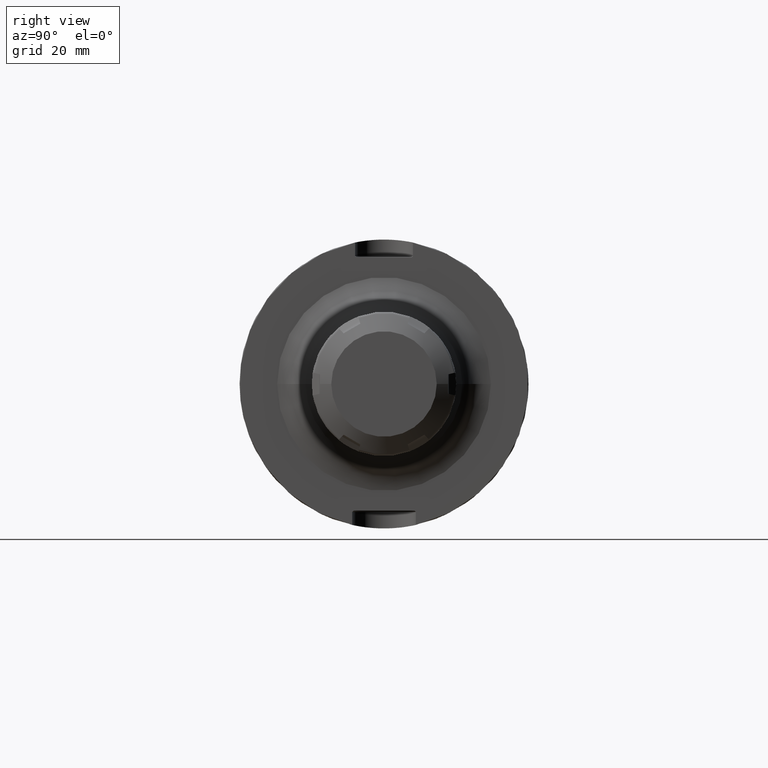
[diagram: clean part render]
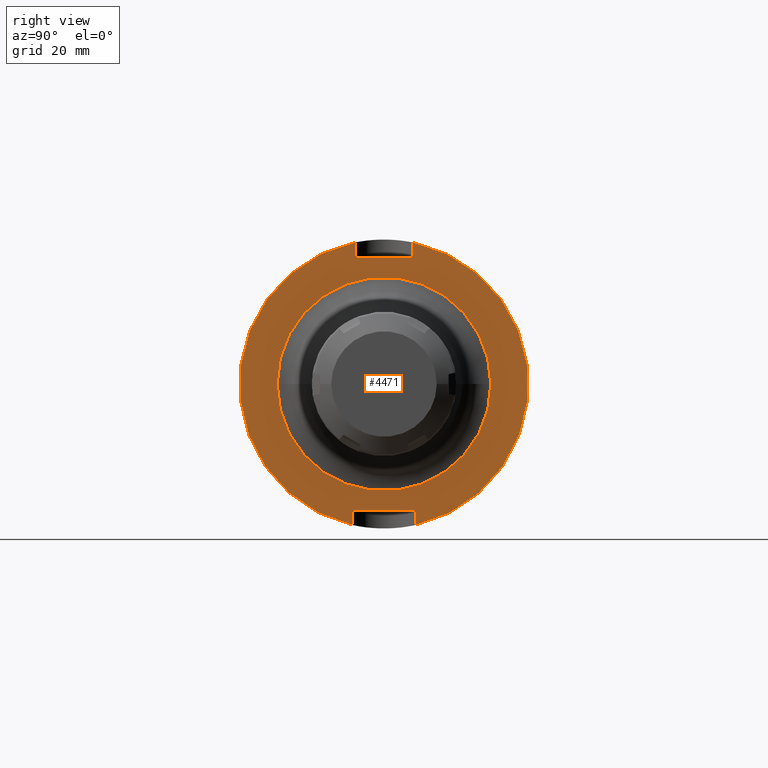
[diagram: same view with one face highlighted and labeled with its STEP entity id]
A machine part, right view. The second image highlights one B-rep face of the part: STEP entity #4471.
In plain terms, the highlighted planar face has unit normal (1, 0, 0).
Its self-contained STEP definition (entity closure, byte-faithful):
#1065=CARTESIAN_POINT('',(2.9E1,0.E0,0.E0));
#1066=DIRECTION('',(1.E0,0.E0,0.E0));
#1067=DIRECTION('',(0.E0,2.2042E-1,-9.754050561690E-1));
#1068=AXIS2_PLACEMENT_3D('',#1065,#1066,#1067);
#1083=CARTESIAN_POINT('',(2.9E1,0.E0,0.E0));
#1084=DIRECTION('',(1.E0,0.E0,0.E0));
#1085=DIRECTION('',(0.E0,-2.0042E-1,9.797100711945E-1));
#1086=AXIS2_PLACEMENT_3D('',#1083,#1084,#1085);
#1194=DIRECTION('',(0.E0,7.071067811865E-1,-7.071067811866E-1));
#1195=VECTOR('',#1194,5.656854249492E-1);
#1196=CARTESIAN_POINT('',(2.9E1,1.0621E1,-4.39E1));
#1197=LINE('',#1196,#1195);
#1202=DIRECTION('',(0.E0,0.E0,1.E0));
#1203=VECTOR('',#1202,4.470252808449E0);
#1204=CARTESIAN_POINT('',(2.9E1,1.1021E1,-4.877025280845E1));
#1205=LINE('',#1204,#1203);
#1206=DIRECTION('',(0.E0,-1.E0,0.E0));
#1207=VECTOR('',#1206,2.1242E1);
#1208=CARTESIAN_POINT('',(2.9E1,1.0621E1,-4.39E1));
#1209=LINE('',#1208,#1207);
#1210=DIRECTION('',(0.E0,0.E0,1.E0));
#1211=VECTOR('',#1210,4.470252808449E0);
#1212=CARTESIAN_POINT('',(2.9E1,-1.1021E1,-4.877025280845E1));
#1213=LINE('',#1212,#1211);
#1214=DIRECTION('',(0.E0,0.E0,-1.E0));
#1215=VECTOR('',#1214,4.685503559727E0);
#1216=CARTESIAN_POINT('',(2.9E1,-1.0021E1,4.898550355973E1));
#1217=LINE('',#1216,#1215);
#1218=DIRECTION('',(0.E0,1.E0,0.E0));
#1219=VECTOR('',#1218,1.9242E1);
#1220=CARTESIAN_POINT('',(2.9E1,-9.621E0,4.39E1));
#1221=LINE('',#1220,#1219);
#1222=DIRECTION('',(0.E0,0.E0,-1.E0));
#1223=VECTOR('',#1222,4.685503559727E0);
#1224=CARTESIAN_POINT('',(2.9E1,1.0021E1,4.898550355973E1));
#1225=LINE('',#1224,#1223);
#1226=CARTESIAN_POINT('',(2.9E1,0.E0,0.E0));
#1227=DIRECTION('',(1.E0,0.E0,0.E0));
#1228=DIRECTION('',(0.E0,-1.E0,0.E0));
#1229=AXIS2_PLACEMENT_3D('',#1226,#1227,#1228);
#1231=CARTESIAN_POINT('',(2.9E1,0.E0,0.E0));
#1232=DIRECTION('',(1.E0,0.E0,0.E0));
#1233=DIRECTION('',(0.E0,1.E0,0.E0));
#1234=AXIS2_PLACEMENT_3D('',#1231,#1232,#1233);
#1253=DIRECTION('',(0.E0,7.071067811865E-1,7.071067811866E-1));
#1254=VECTOR('',#1253,5.656854249492E-1);
#1255=CARTESIAN_POINT('',(2.9E1,-1.1021E1,-4.43E1));
#1256=LINE('',#1255,#1254);
#1707=DIRECTION('',(0.E0,-7.071067811865E-1,-7.071067811865E-1));
#1708=VECTOR('',#1707,5.656854249492E-1);
#1709=CARTESIAN_POINT('',(2.9E1,1.0021E1,4.43E1));
#1710=LINE('',#1709,#1708);
#1724=DIRECTION('',(0.E0,-7.071067811865E-1,7.071067811866E-1));
#1725=VECTOR('',#1724,5.656854249492E-1);
#1726=CARTESIAN_POINT('',(2.9E1,-9.621E0,4.39E1));
#1727=LINE('',#1726,#1725);
#3032=CARTESIAN_POINT('',(2.9E1,1.0021E1,4.43E1));
#3033=CARTESIAN_POINT('',(2.9E1,9.621E0,4.39E1));
#3034=VERTEX_POINT('',#3032);
#3035=VERTEX_POINT('',#3033);
#3036=CARTESIAN_POINT('',(2.9E1,-9.621E0,4.39E1));
#3037=CARTESIAN_POINT('',(2.9E1,-1.0021E1,4.43E1));
#3038=VERTEX_POINT('',#3036);
#3039=VERTEX_POINT('',#3037);
#3040=CARTESIAN_POINT('',(2.9E1,-1.1021E1,-4.43E1));
#3041=CARTESIAN_POINT('',(2.9E1,-1.0621E1,-4.39E1));
#3042=VERTEX_POINT('',#3040);
#3043=VERTEX_POINT('',#3041);
#3044=CARTESIAN_POINT('',(2.9E1,1.0621E1,-4.39E1));
#3045=CARTESIAN_POINT('',(2.9E1,1.1021E1,-4.43E1));
#3046=VERTEX_POINT('',#3044);
#3047=VERTEX_POINT('',#3045);
#3130=CARTESIAN_POINT('',(2.9E1,-1.0021E1,4.898550355973E1));
#3131=CARTESIAN_POINT('',(2.9E1,-1.1021E1,-4.877025280845E1));
#3132=VERTEX_POINT('',#3130);
#3133=VERTEX_POINT('',#3131);
#3134=CARTESIAN_POINT('',(2.9E1,1.1021E1,-4.877025280845E1));
#3135=CARTESIAN_POINT('',(2.9E1,1.0021E1,4.898550355973E1));
#3136=VERTEX_POINT('',#3134);
#3137=VERTEX_POINT('',#3135);
#3244=CARTESIAN_POINT('',(2.9E1,-3.699109804042E1,1.765168711030E-13));
#3245=CARTESIAN_POINT('',(2.9E1,3.699109804042E1,-1.810469740842E-13));
#3246=VERTEX_POINT('',#3244);
#3247=VERTEX_POINT('',#3245);
#4438=CARTESIAN_POINT('',(2.9E1,0.E0,0.E0));
#4439=DIRECTION('',(1.E0,0.E0,0.E0));
#4440=DIRECTION('',(0.E0,-1.E0,0.E0));
#4441=AXIS2_PLACEMENT_3D('',#4438,#4439,#4440);
#4442=PLANE('',#4441);
#4443=ORIENTED_EDGE('',*,*,#4400,.T.);
#4444=ORIENTED_EDGE('',*,*,#4428,.F.);
#4446=ORIENTED_EDGE('',*,*,#4445,.T.);
#4448=ORIENTED_EDGE('',*,*,#4447,.F.);
#4450=ORIENTED_EDGE('',*,*,#4449,.F.);
#4451=ORIENTED_EDGE('',*,*,#4358,.F.);
#4453=ORIENTED_EDGE('',*,*,#4452,.T.);
#4455=ORIENTED_EDGE('',*,*,#4454,.F.);
#4457=ORIENTED_EDGE('',*,*,#4456,.T.);
#4459=ORIENTED_EDGE('',*,*,#4458,.F.);
#4461=ORIENTED_EDGE('',*,*,#4460,.F.);
#4462=ORIENTED_EDGE('',*,*,#4333,.F.);
#4463=EDGE_LOOP('',(#4443,#4444,#4446,#4448,#4450,#4451,#4453,#4455,#4457,#4459,
#4461,#4462));
#4464=FACE_OUTER_BOUND('',#4463,.F.);
#4466=ORIENTED_EDGE('',*,*,#4465,.T.);
#4468=ORIENTED_EDGE('',*,*,#4467,.T.);
#4469=EDGE_LOOP('',(#4466,#4468));
#4470=FACE_BOUND('',#4469,.F.);
#4471=ADVANCED_FACE('',(#4464,#4470),#4442,.T.);
#1069=CIRCLE('',#1068,5.E1);
#1087=CIRCLE('',#1086,5.E1);
#1230=CIRCLE('',#1229,3.699109804042E1);
#1235=CIRCLE('',#1234,3.699109804042E1);
#4333=EDGE_CURVE('',#3136,#3137,#1069,.T.);
#4358=EDGE_CURVE('',#3132,#3133,#1087,.T.);
#4400=EDGE_CURVE('',#3136,#3047,#1205,.T.);
#4428=EDGE_CURVE('',#3046,#3047,#1197,.T.);
#4445=EDGE_CURVE('',#3046,#3043,#1209,.T.);
#4447=EDGE_CURVE('',#3042,#3043,#1256,.T.);
#4449=EDGE_CURVE('',#3133,#3042,#1213,.T.);
#4452=EDGE_CURVE('',#3132,#3039,#1217,.T.);
#4454=EDGE_CURVE('',#3038,#3039,#1727,.T.);
#4456=EDGE_CURVE('',#3038,#3035,#1221,.T.);
#4458=EDGE_CURVE('',#3034,#3035,#1710,.T.);
#4460=EDGE_CURVE('',#3137,#3034,#1225,.T.);
#4465=EDGE_CURVE('',#3246,#3247,#1230,.T.);
#4467=EDGE_CURVE('',#3247,#3246,#1235,.T.);